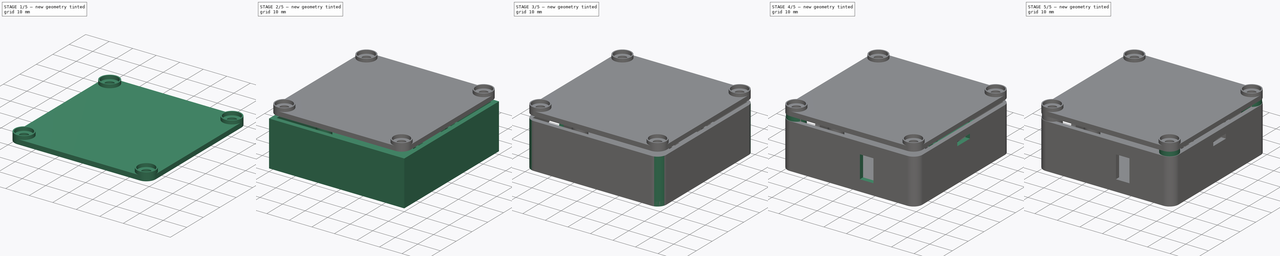
[diagram: build sequence overview — one tinted view per stage of 5, left to right]
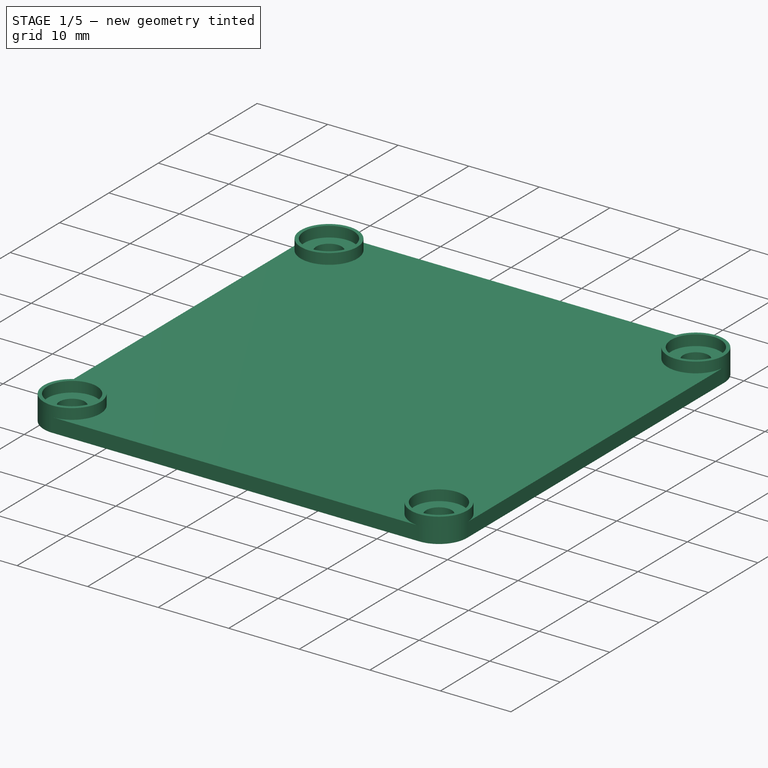
[diagram: stage 1 of 5 — iso view after this stage's code; geometry added in this stage tinted green]
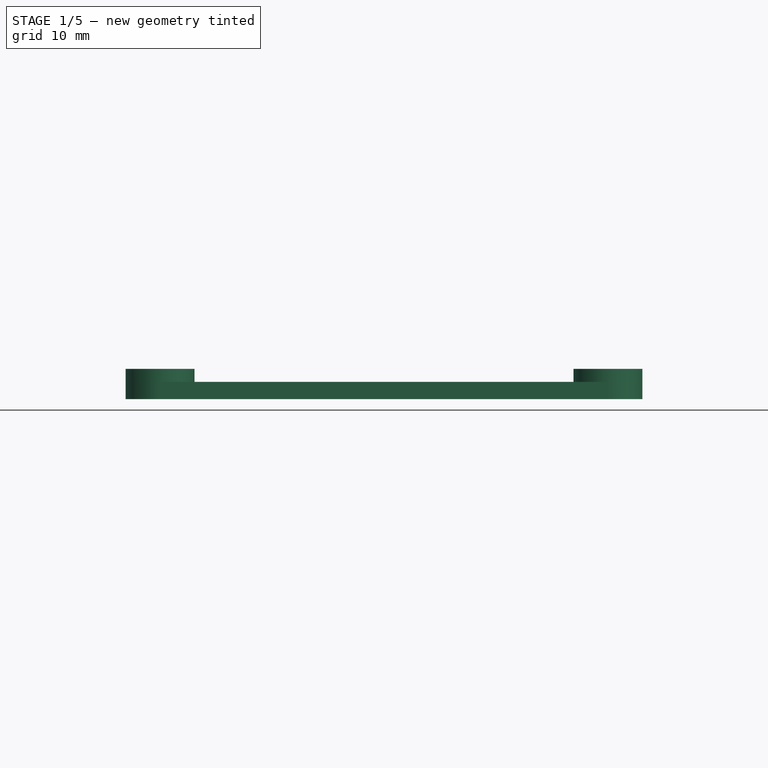
[diagram: stage 1 of 5 — front view after this stage's code; geometry added in this stage tinted green]
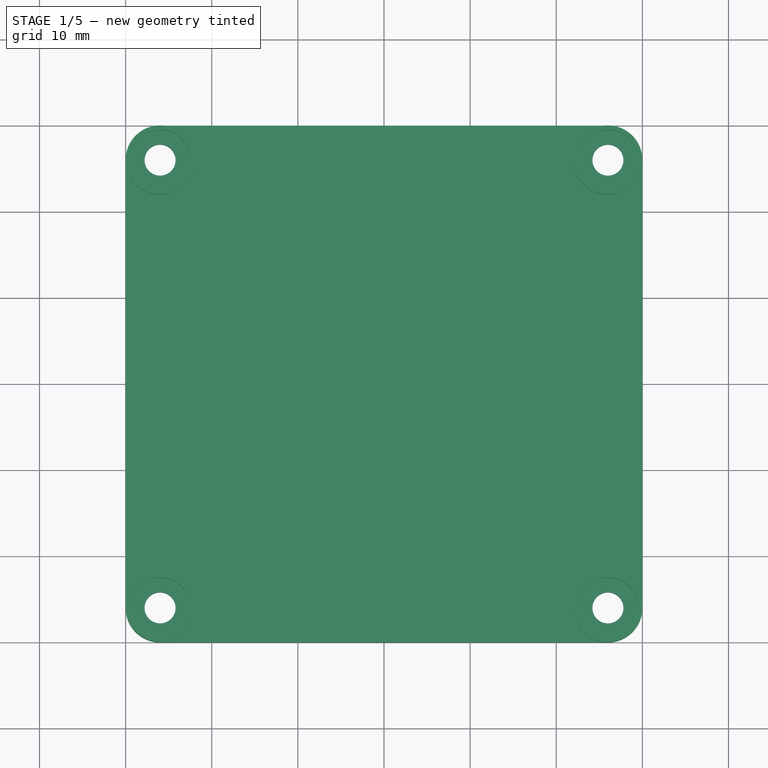
[diagram: stage 1 of 5 — top view after this stage's code; geometry added in this stage tinted green]
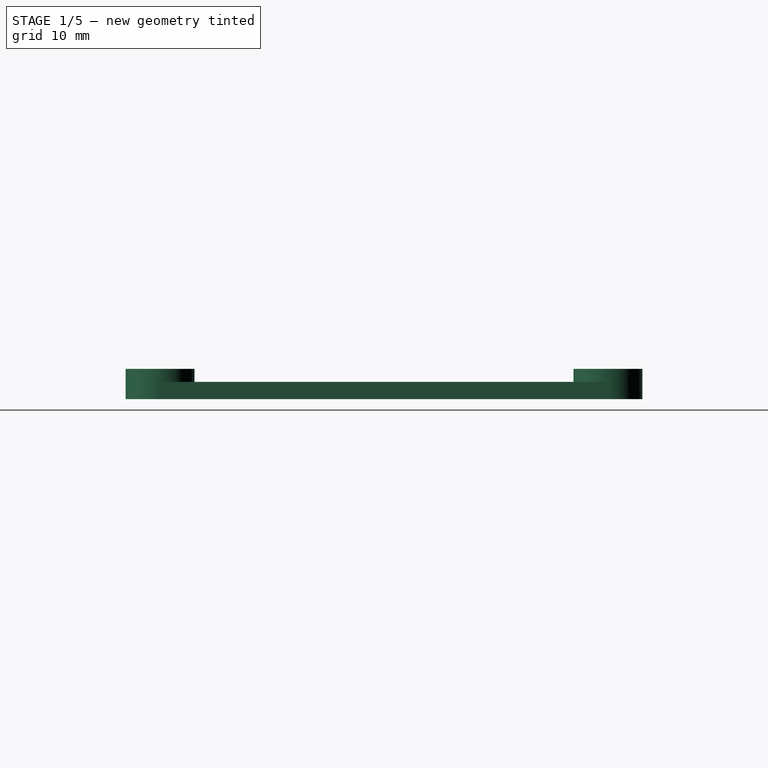
[diagram: stage 1 of 5 — right view after this stage's code; geometry added in this stage tinted green]
FCSTD DOCUMENT  (FreeCAD 0.19R)
Label: box
License: All rights reserved
LicenseURL: http://en.wikipedia.org/wiki/All_rights_reserved
objects: Sketcher::SketchObject×14, PartDesign::Pad×10, PartDesign::Body×8, PartDesign::Pocket×4, PartDesign::Fillet×3
note: 56 computed .brp shape members not serialized (recipe doc carries the construction recipe); baked Part::Feature solids carry a one-line shape summary decoded from their .brp

FEATURE [PartDesign::Body] Body001  label="BottomBox"
  Group = -> [Sketch001,Pad,Fillet002,Sketch008,Pad008]
  Origin = -> Origin001
  Tip = -> Pad008
FEATURE [Sketcher::SketchObject] Sketch012
  AttachmentOffset = pos=(0,0,22) rot=(0,0,1;0rad)
  FullyConstrained = true
  MapMode = 5
  Placement = pos=(0,0,22) rot=(0,0,1;0rad)
  Support = -> [XY_Plane007]
  sketch-geometry (8):
    g0: LineSegment StartX=0 StartY=0 StartZ=0 EndX=60 EndY=0 EndZ=0
    g1: LineSegment StartX=60 StartY=0 StartZ=0 EndX=60 EndY=60 EndZ=0
    g2: LineSegment StartX=60 StartY=60 StartZ=0 EndX=0 EndY=60 EndZ=0
    g3: LineSegment StartX=0 StartY=60 StartZ=0 EndX=0 EndY=0 EndZ=0
    g4: Circle CenterX=4 CenterY=4 CenterZ=0 NormalX=0 NormalY=0 NormalZ=1 AngleXU=0 Radius=1.8
    g5: Circle CenterX=56 CenterY=4 CenterZ=0 NormalX=0 NormalY=0 NormalZ=1 AngleXU=0 Radius=1.8
    g6: Circle CenterX=56 CenterY=56 CenterZ=0 NormalX=0 NormalY=0 NormalZ=1 AngleXU=0 Radius=1.8
    g7: Circle CenterX=4 CenterY=56 CenterZ=0 NormalX=0 NormalY=0 NormalZ=1 AngleXU=0 Radius=1.8
  constraints (23):
    c: Coincident(g0,g1)
    c: Coincident(g1,g2)
    c: Coincident(g2,g3)
    c: Coincident(g3,g0)
    c: Horizontal(g0)
    c: Horizontal(g2)
    c: Vertical(g1)
    c: Vertical(g3)
    c: Coincident(g0,g-1)
    c: Distance(g1) = 60
    c: Distance(g2) = 60
    c: Radius(g4) = 1.8
    c: Distance(g4,g3) = 4
    c: Distance(g4,g0) = 4
    c: Radius(g5) = 1.8
    c: Radius(g6) = 1.8
    c: Radius(g7) = 1.8
    c: Distance(g6,g1) = 4
    c: Distance(g6,g2) = 4
    c: Distance(g7,g2) = 4
    c: Distance(g7,g3) = 4
    c: Distance(g5,g1) = 4
    c: Distance(g5,g0) = 4
FEATURE [PartDesign::Pad] Pad009  label="Выдавливание001"
  Direction = (1,1,1)
  Length = 2
  Length2 = 100
  Profile = -> Sketch012
  Type = 0
FEATURE [PartDesign::Fillet] Fillet003
  Base = -> Pad009 [Edge1,Edge8,Edge5,Edge2]
  BaseFeature = -> Pad009
  Radius = 4
  SupportTransform = false
FEATURE [Sketcher::SketchObject] Sketch013
  AttachmentOffset = pos=(0,0,24) rot=(0,0,1;0rad)
  FullyConstrained = true
  MapMode = 5
  Placement = pos=(0,0,24) rot=(0,0,1;0rad)
  Support = -> [XY_Plane007]
  sketch-geometry (8):
    g0: Circle CenterX=4 CenterY=4 CenterZ=0 NormalX=0 NormalY=0 NormalZ=1 AngleXU=0 Radius=4
    g1: Circle CenterX=4 CenterY=4 CenterZ=0 NormalX=0 NormalY=0 NormalZ=1 AngleXU=0 Radius=3.5
    g2: Circle CenterX=56 CenterY=4 CenterZ=0 NormalX=0 NormalY=0 NormalZ=1 AngleXU=0 Radius=4
    g3: Circle CenterX=4 CenterY=56 CenterZ=0 NormalX=0 NormalY=0 NormalZ=1 AngleXU=0 Radius=4
    g4: Circle CenterX=56 CenterY=56 CenterZ=0 NormalX=0 NormalY=0 NormalZ=1 AngleXU=0 Radius=4
    g5: Circle CenterX=4 CenterY=56 CenterZ=0 NormalX=0 NormalY=0 NormalZ=1 AngleXU=0 Radius=3.5
    g6: Circle CenterX=56 CenterY=56 CenterZ=0 NormalX=0 NormalY=0 NormalZ=1 AngleXU=0 Radius=3.5
    g7: Circle CenterX=56 CenterY=4 CenterZ=0 NormalX=0 NormalY=0 NormalZ=1 AngleXU=0 Radius=3.5
  constraints (20):
    c: Distance(g0,g-1) = 4
    c: Distance(g0,g-2) = 4
    c: Radius(g0) = 4
    c: Coincident(g1,g0)
    c: Radius(g1) = 3.5
    c: Distance(g2,g-1) = 4
    c: Distance(g2,g-2) = 56
    c: Radius(g2) = 4
    c: Distance(g3,g-2) = 4
    c: Distance(g3,g-1) = 56
    c: Radius(g3) = 4
    c: Radius(g4) = 4
    c: Distance(g4,g-2) = 56
    c: Distance(g4,g-1) = 56
    c: Coincident(g5,g3)
    c: Coincident(g6,g4)
    c: Coincident(g7,g2)
    c: Radius(g7) = 3.5
    c: Radius(g6) = 3.5
    c: Radius(g5) = 3.5
FEATURE [PartDesign::Pad] Pad010  label="Ножки"
  BaseFeature = -> Fillet003
  Direction = (1,1,1)
  Length = 1.5
  Length2 = 100
  Profile = -> Sketch013
  Type = 0
FEATURE [PartDesign::Body] Body007  label="Top"
  Group = -> [Sketch012,Pad009,Fillet003,Sketch013,Pad010]
  Origin = -> Origin007
  Tip = -> Pad010
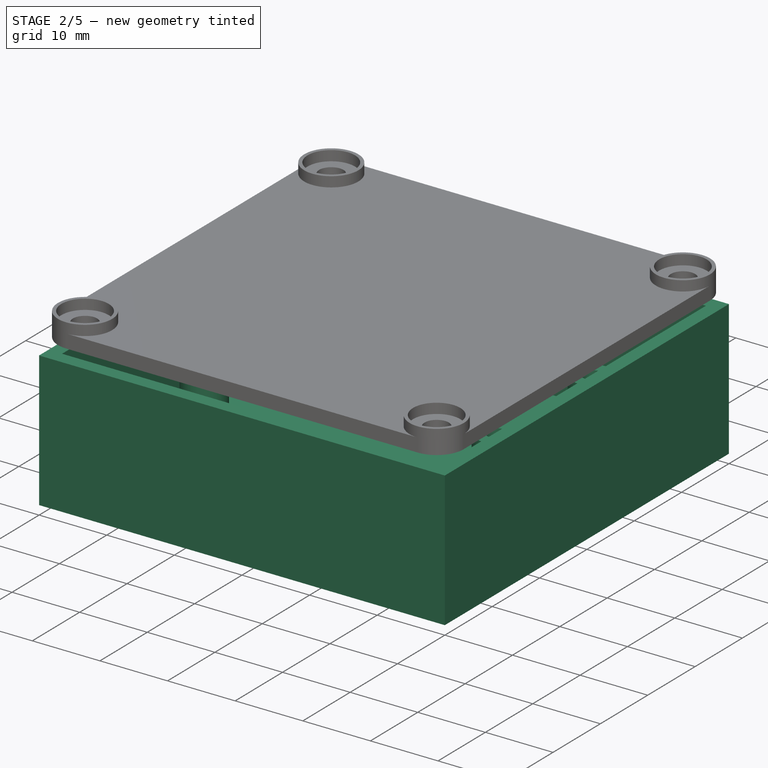
[diagram: stage 2 of 5 — iso view after this stage's code; geometry added in this stage tinted green]
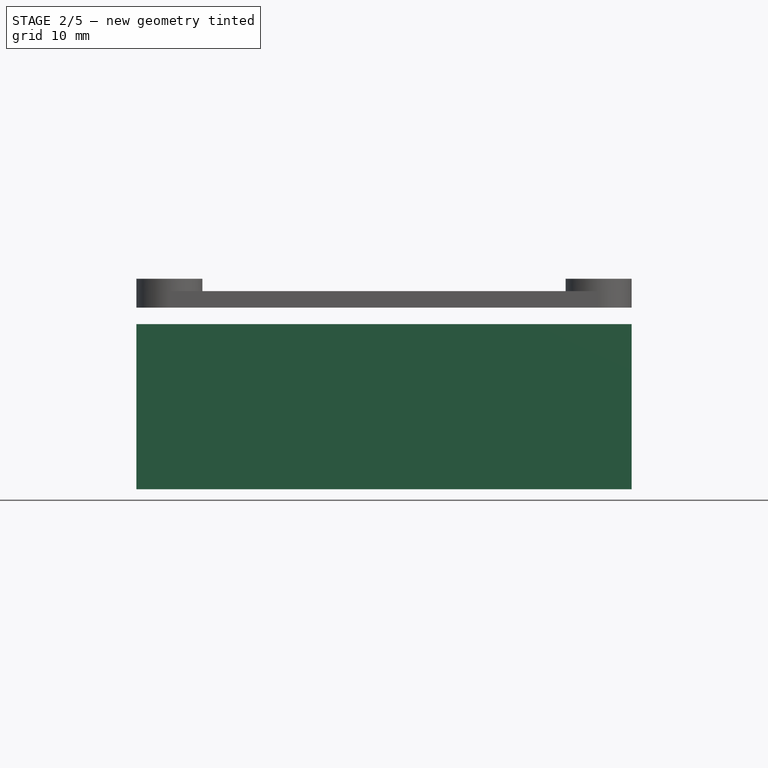
[diagram: stage 2 of 5 — front view after this stage's code; geometry added in this stage tinted green]
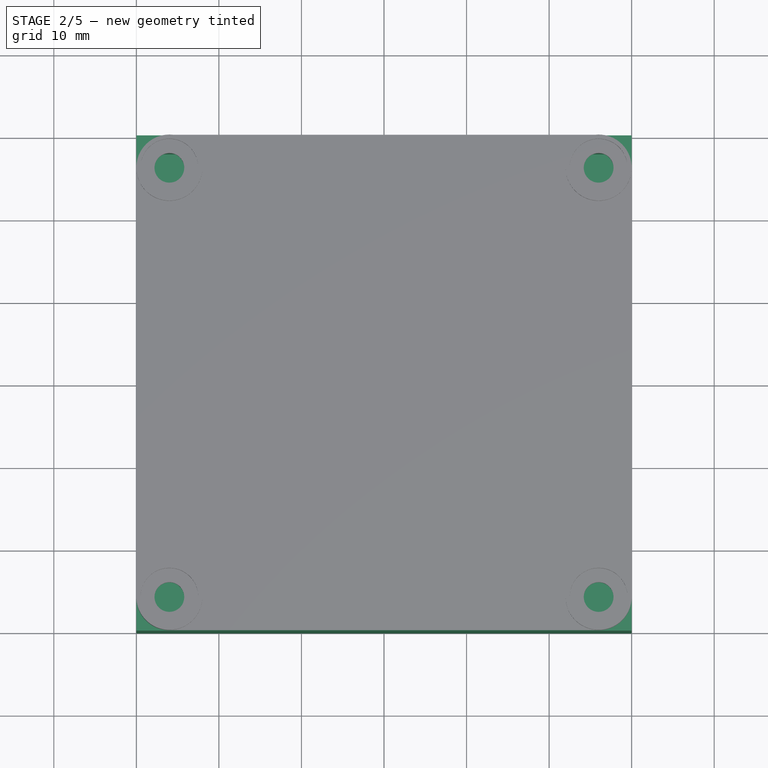
[diagram: stage 2 of 5 — top view after this stage's code; geometry added in this stage tinted green]
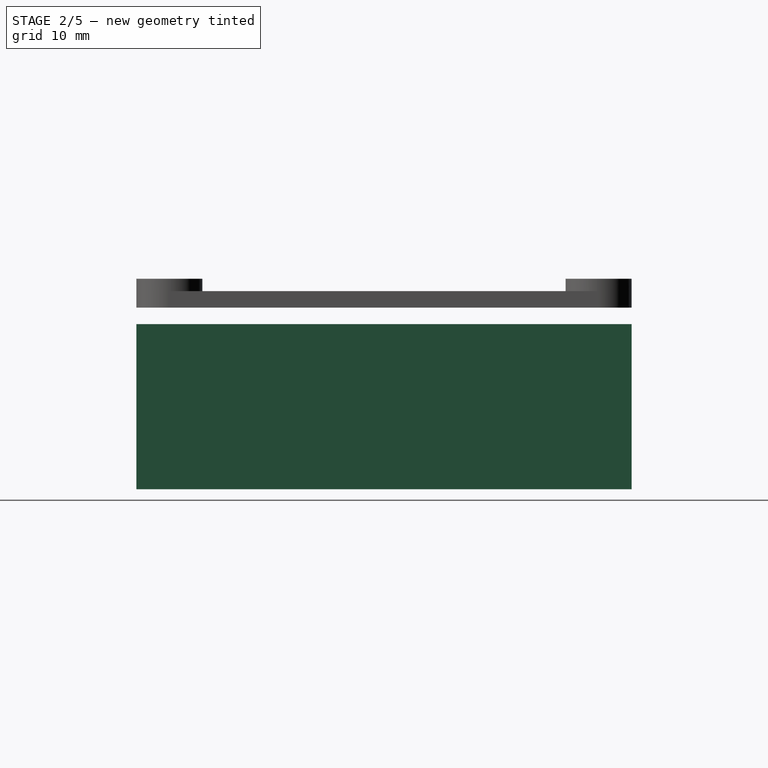
[diagram: stage 2 of 5 — right view after this stage's code; geometry added in this stage tinted green]
FEATURE [Sketcher::SketchObject] Sketch  label="esp_scheme"
  AttachmentOffset = pos=(0,0,12) rot=(0,0,1;0rad)
  FullyConstrained = true
  MapMode = 5
  Placement = pos=(0,0,12) rot=(0,0,1;0rad)
  Support = -> [XY_Plane]
  sketch-geometry (8):
    g0: LineSegment StartX=2.5 StartY=50.5 StartZ=0 EndX=50.9 EndY=50.5 EndZ=0
    g1: LineSegment StartX=50.9 StartY=50.5 StartZ=0 EndX=50.9 EndY=25 EndZ=0
    g2: LineSegment StartX=50.9 StartY=25 StartZ=0 EndX=2.5 EndY=25 EndZ=0
    g3: LineSegment StartX=2.5 StartY=25 StartZ=0 EndX=2.5 EndY=50.5 EndZ=0
    g4: Circle CenterX=5.1 CenterY=47.9 CenterZ=0 NormalX=0 NormalY=0 NormalZ=1 AngleXU=0 Radius=1.6
    g5: Circle CenterX=5.1 CenterY=27.6 CenterZ=0 NormalX=0 NormalY=0 NormalZ=1 AngleXU=0 Radius=1.6
    g6: Circle CenterX=48.3 CenterY=47.9 CenterZ=0 NormalX=0 NormalY=0 NormalZ=1 AngleXU=0 Radius=1.6
    g7: Circle CenterX=48.3 CenterY=27.6 CenterZ=0 NormalX=0 NormalY=0 NormalZ=1 AngleXU=0 Radius=1.6
  constraints (24):
    c: Coincident(g0,g1)
    c: Coincident(g1,g2)
    c: Coincident(g2,g3)
    c: Coincident(g3,g0)
    c: Horizontal(g0)
    c: Horizontal(g2)
    c: Vertical(g1)
    c: Vertical(g3)
    c: DistanceX(g0,g0) = 48.4
    c: DistanceY(g1,g1) = 25.5
    c: Radius(g4) = 1.6
    c: Distance(g4,g3) = 2.6
    c: Distance(g4,g0) = 2.6
    c: Equal(g4,g5) = 1.6
    c: Distance(g5,g3) = 2.6
    c: Distance(g5,g2) = 2.6
    c: Equal(g4,g6) = 1.6
    c: Distance(g6,g0) = 2.6
    c: Distance(g6,g1) = 2.6
    c: Equal(g4,g7) = 1.6
    c: Distance(g7,g1) = 2.6
    c: Distance(g7,g2) = 2.6
    c: Distance(g-1,g2) = 25
    c: Distance(g-1,g3) = 2.5
FEATURE [Sketcher::SketchObject] Sketch001
  FullyConstrained = true
  MapMode = 5
  Support = -> [XY_Plane001]
  sketch-geometry (4):
    g0: LineSegment StartX=0 StartY=0 StartZ=0 EndX=60 EndY=0 EndZ=0
    g1: LineSegment StartX=60 StartY=0 StartZ=0 EndX=60 EndY=60 EndZ=0
    g2: LineSegment StartX=60 StartY=60 StartZ=0 EndX=0 EndY=60 EndZ=0
    g3: LineSegment StartX=0 StartY=60 StartZ=0 EndX=0 EndY=0 EndZ=0
  constraints (11):
    c: Coincident(g0,g1)
    c: Coincident(g1,g2)
    c: Coincident(g2,g3)
    c: Coincident(g3,g0)
    c: Horizontal(g0)
    c: Horizontal(g2)
    c: Vertical(g1)
    c: Vertical(g3)
    c: Distance(g3) = 60
    c: Distance(g2) = 60
    c: Coincident(g-1,g0)
FEATURE [PartDesign::Pad] Pad  label="Выдавливание"
  Direction = (1,1,1)
  Length = 2
  Length2 = 100
  Profile = -> Sketch001
  Type = 0
FEATURE [Sketcher::SketchObject] Sketch002  label="Стенки"
  FullyConstrained = true
  MapMode = 5
  Support = -> [XY_Plane002]
  sketch-geometry (8):
    g0: LineSegment StartX=0 StartY=0 StartZ=0 EndX=60 EndY=0 EndZ=0
    g1: LineSegment StartX=60 StartY=0 StartZ=0 EndX=60 EndY=60 EndZ=0
    g2: LineSegment StartX=60 StartY=60 StartZ=0 EndX=0 EndY=60 EndZ=0
    g3: LineSegment StartX=0 StartY=60 StartZ=0 EndX=0 EndY=0 EndZ=0
    g4: LineSegment StartX=2 StartY=2 StartZ=0 EndX=58 EndY=2 EndZ=0
    g5: LineSegment StartX=58 StartY=2 StartZ=0 EndX=58 EndY=58 EndZ=0
    g6: LineSegment StartX=58 StartY=58 StartZ=0 EndX=2 EndY=58 EndZ=0
    g7: LineSegment StartX=2 StartY=58 StartZ=0 EndX=2 EndY=2 EndZ=0
  constraints (23):
    c: Coincident(g0,g1)
    c: Coincident(g1,g2)
    c: Coincident(g2,g3)
    c: Coincident(g3,g0)
    c: Horizontal(g0)
    c: Horizontal(g2)
    c: Vertical(g1)
    c: Vertical(g3)
    c: Coincident(g0,g-1)
    c: Distance(g2) = 60
    c: Distance(g3) = 60
    c: Coincident(g4,g5)
    c: Coincident(g5,g6)
    c: Coincident(g6,g7)
    c: Coincident(g7,g4)
    c: Horizontal(g4)
    c: Horizontal(g6)
    c: Vertical(g5)
    c: Vertical(g7)
    c: Distance(g6,g3) = 2
    c: Distance(g6,g2) = 2
    c: Distance(g5,g1) = 2
    c: Distance(g4,g0) = 2
FEATURE [PartDesign::Fillet] Fillet002  label="Закругление"
  Base = -> Pad [Edge1,Edge8,Edge5,Edge2]
  BaseFeature = -> Pad
  Radius = 4
  SupportTransform = false
FEATURE [PartDesign::Body] Body003  label="Стойка ЛН001"
  Group = -> [Sketch004,Pad002]
  Origin = -> Origin003
  Tip = -> Pad002
FEATURE [PartDesign::Pad] Pad006  label="Стенки_выдавливание"
  Direction = (1,1,1)
  Length = 20
  Length2 = 100
  Profile = -> Sketch002
  Type = 0
FEATURE [PartDesign::Body] Body002  label="BoxSides"
  Group = -> [Sketch002,Sketch003,Pad006,Fillet,Pocket,Sketch009,Pocket001,Sketch010,Pocket002,Sketch011,Pocket003]
  Origin = -> Origin002
  Placement = pos=(0,0,2) rot=(0,0,1;0rad)
  Tip = -> Pocket003
FEATURE [PartDesign::Pad] Pad008  label="Стойки_esp"
  BaseFeature = -> Fillet002
  Direction = (1,1,1)
  Length = 10
  Length2 = 100
  Profile = -> Sketch008
  Type = 0
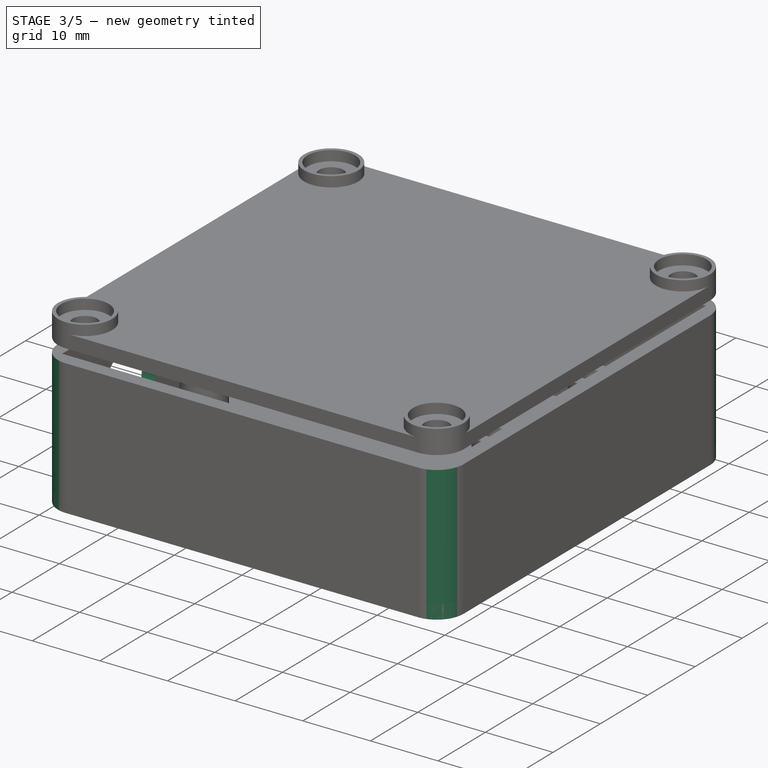
[diagram: stage 3 of 5 — iso view after this stage's code; geometry added in this stage tinted green]
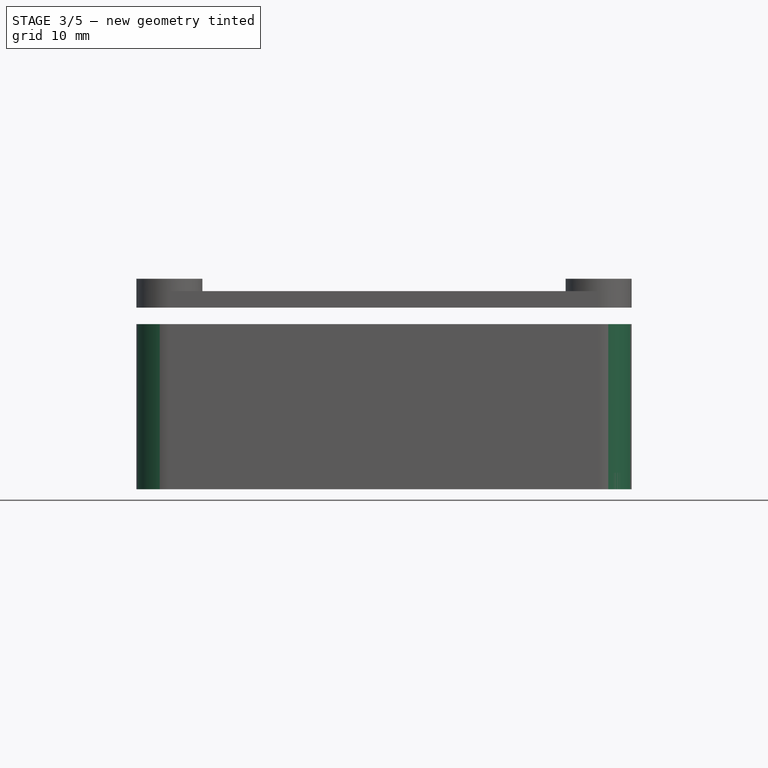
[diagram: stage 3 of 5 — front view after this stage's code; geometry added in this stage tinted green]
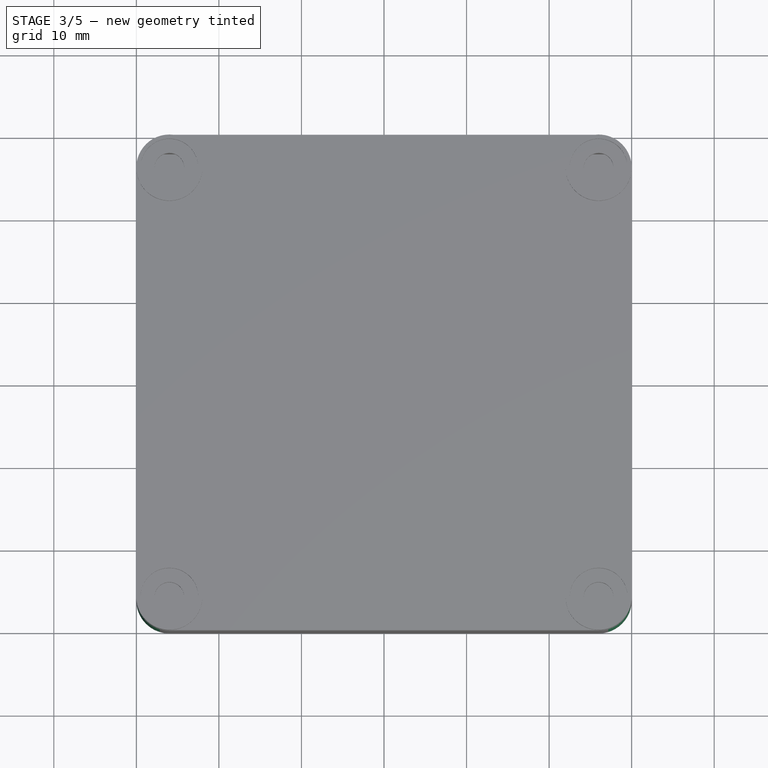
[diagram: stage 3 of 5 — top view after this stage's code; geometry added in this stage tinted green]
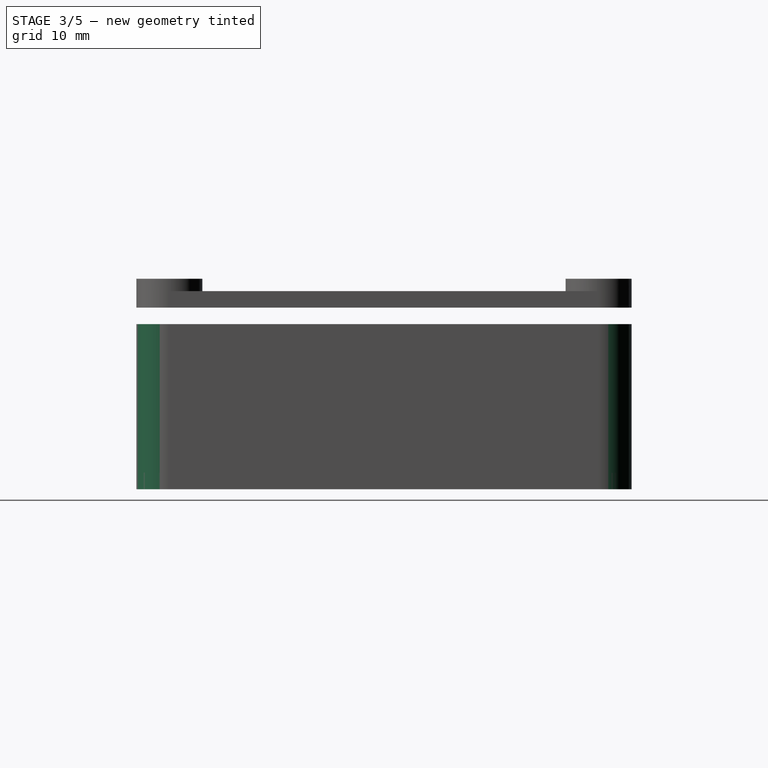
[diagram: stage 3 of 5 — right view after this stage's code; geometry added in this stage tinted green]
FEATURE [PartDesign::Fillet] Fillet  label="Стенки_закругление"
  Base = -> Pad006 [Edge1,Edge2,Edge8,Edge5]
  BaseFeature = -> Pad006
  Radius = 4
  SupportTransform = false
FEATURE [PartDesign::Body] Body  label="ESP"
  Group = -> [Sketch,Pad007]
  Origin = -> Origin
  Tip = -> Pad007
FEATURE [Sketcher::SketchObject] Sketch008  label="esp_стойки"
  AttachmentOffset = pos=(0,0,2) rot=(0,0,1;0rad)
  FullyConstrained = true
  MapMode = 5
  Placement = pos=(0,0,2) rot=(0,0,1;0rad)
  Support = -> [XY_Plane001]
  sketch-geometry (8):
    g0: Circle CenterX=5.1 CenterY=47.9 CenterZ=0 NormalX=0 NormalY=0 NormalZ=1 AngleXU=0 Radius=1.4
    g1: Circle CenterX=5.1 CenterY=27.6 CenterZ=0 NormalX=0 NormalY=0 NormalZ=1 AngleXU=0 Radius=1.4
    g2: Circle CenterX=48.3 CenterY=47.9 CenterZ=0 NormalX=0 NormalY=0 NormalZ=1 AngleXU=0 Radius=1.4
    g3: Circle CenterX=48.3 CenterY=27.6 CenterZ=0 NormalX=0 NormalY=0 NormalZ=1 AngleXU=0 Radius=1.4
    g4: Circle CenterX=5.1 CenterY=47.9 CenterZ=0 NormalX=0 NormalY=0 NormalZ=1 AngleXU=0 Radius=3
    g5: Circle CenterX=48.3 CenterY=47.9 CenterZ=0 NormalX=0 NormalY=0 NormalZ=1 AngleXU=0 Radius=3
    g6: Circle CenterX=48.3 CenterY=27.6 CenterZ=0 NormalX=0 NormalY=0 NormalZ=1 AngleXU=0 Radius=3
    g7: Circle CenterX=5.1 CenterY=27.6 CenterZ=0 NormalX=0 NormalY=0 NormalZ=1 AngleXU=0 Radius=3
  constraints (20):
    c: Distance(g0,g-2) = 5.1
    c: Radius(g0) = 1.4
    c: Distance(g0,g-1) = 47.9
    c: Distance(g1,g-2) = 5.1
    c: Radius(g1) = 1.4
    c: Distance(g1,g-1) = 27.6
    c: Radius(g2) = 1.4
    c: Distance(g2,g-2) = 48.3
    c: Distance(g2,g-1) = 47.9
    c: Radius(g3) = 1.4
    c: Distance(g3,g-1) = 27.6
    c: Distance(g3,g-2) = 48.3
    c: Coincident(g4,g0)
    c: Radius(g4) = 3
    c: Coincident(g5,g2)
    c: Coincident(g6,g3)
    c: Coincident(g7,g1)
    c: Radius(g5) = 3
    c: Radius(g6) = 3
    c: Radius(g7) = 3
FEATURE [PartDesign::Pocket] Pocket  label="Power_con_"
  BaseFeature = -> Fillet
  Length = 2
  Length2 = 100
  Profile = -> Sketch003
  Reversed = true
  Type = 0
FEATURE [Sketcher::SketchObject] Sketch009  label="usb_scheme"
  FullyConstrained = true
  MapMode = 5
  Placement = pos=(0,0,0) rot=(0.57735,0.57735,0.57735;2.0944rad)
  Support = -> [YZ_Plane002]
  sketch-geometry (4):
    g0: LineSegment StartX=42.75 StartY=14.6 StartZ=0 EndX=32.75 EndY=14.6 EndZ=0
    g1: LineSegment StartX=32.75 StartY=14.6 StartZ=0 EndX=32.75 EndY=11.6 EndZ=0
    g2: LineSegment StartX=32.75 StartY=11.6 StartZ=0 EndX=42.75 EndY=11.6 EndZ=0
    g3: LineSegment StartX=42.75 StartY=11.6 StartZ=0 EndX=42.75 EndY=14.6 EndZ=0
  constraints (12):
    c: Coincident(g0,g1)
    c: Coincident(g1,g2)
    c: Coincident(g2,g3)
    c: Coincident(g3,g0)
    c: Horizontal(g0)
    c: Horizontal(g2)
    c: Vertical(g1)
    c: Vertical(g3)
    c: Distance(g1) = 3
    c: Distance(g2) = 10
    c: Distance(g1,g-2) = 32.75
    c: Distance(g2,g-1) = 11.6
FEATURE [PartDesign::Pocket] Pocket001  label="usb"
  BaseFeature = -> Pocket
  Length = 2
  Length2 = 100
  Profile = -> Sketch009
  Reversed = true
  Type = 0
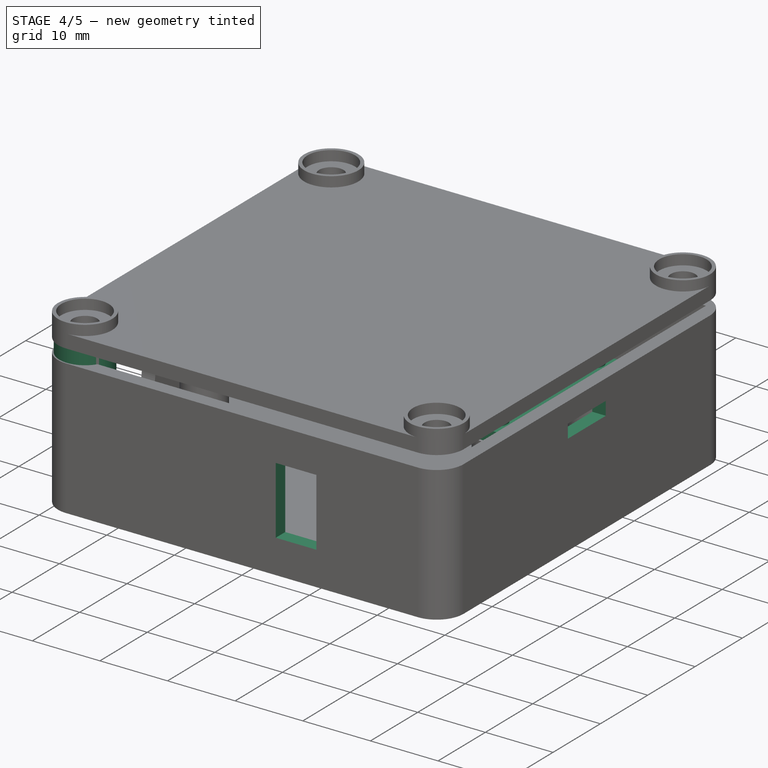
[diagram: stage 4 of 5 — iso view after this stage's code; geometry added in this stage tinted green]
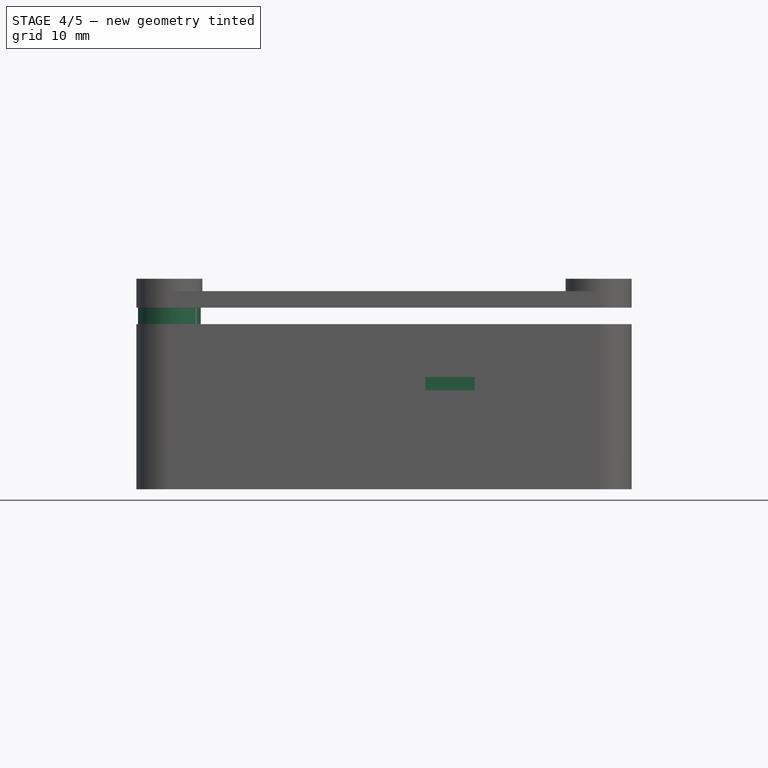
[diagram: stage 4 of 5 — front view after this stage's code; geometry added in this stage tinted green]
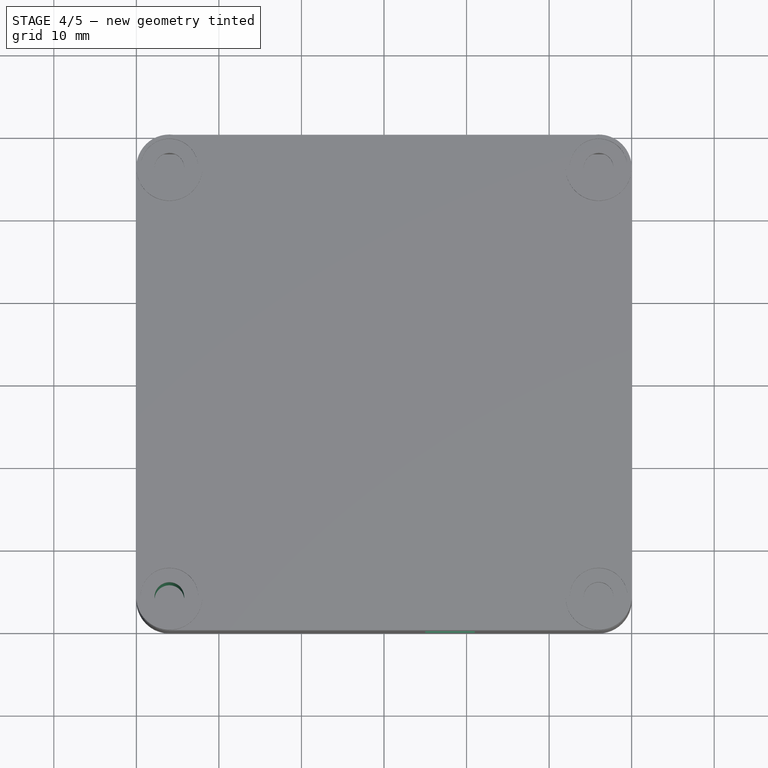
[diagram: stage 4 of 5 — top view after this stage's code; geometry added in this stage tinted green]
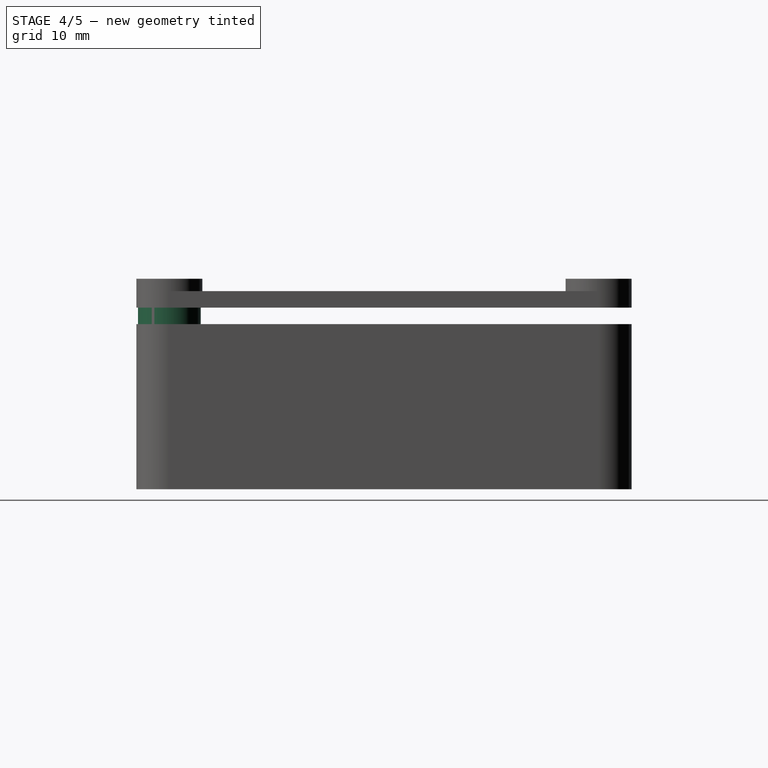
[diagram: stage 4 of 5 — right view after this stage's code; geometry added in this stage tinted green]
FEATURE [PartDesign::Body] Body006  label="Стойка ПВ001"
  Group = -> [Sketch007,Pad005]
  Origin = -> Origin006
  Tip = -> Pad005
FEATURE [Sketcher::SketchObject] Sketch004
  AttachmentOffset = pos=(0,0,2) rot=(0,0,1;0rad)
  FullyConstrained = true
  MapMode = 5
  Placement = pos=(0,0,2) rot=(0,0,1;0rad)
  Support = -> [XY_Plane003]
  sketch-geometry (2):
    g0: Circle CenterX=4 CenterY=4 CenterZ=0 NormalX=0 NormalY=0 NormalZ=1 AngleXU=0 Radius=1.8
    g1: Circle CenterX=4 CenterY=4 CenterZ=0 NormalX=0 NormalY=0 NormalZ=1 AngleXU=0 Radius=3.8
  constraints (5):
    c: Radius(g0) = 1.8
    c: Distance(g0,g-2) = 4
    c: Distance(g0,g-1) = 4
    c: Coincident(g1,g0)
    c: Radius(g1) = 3.8
FEATURE [PartDesign::Pad] Pad002  label="Стойка ЛН"
  Direction = (1,1,1)
  Length = 20
  Length2 = 100
  Profile = -> Sketch004
  Type = 0
FEATURE [PartDesign::Pad] Pad007  label="esp_"
  Direction = (1,1,1)
  Length = 1.6
  Length2 = 100
  Profile = -> Sketch
  Type = 0
FEATURE [Sketcher::SketchObject] Sketch010  label="Strip_outout_scheme"
  AttachmentOffset = pos=(0,0,60) rot=(0,0,1;0rad)
  FullyConstrained = true
  MapMode = 5
  Placement = pos=(60,-1.33e-14,1.33e-14) rot=(0.57735,0.57735,0.57735;2.0944rad)
  Support = -> [YZ_Plane002]
  sketch-geometry (4):
    g0: LineSegment StartX=26 StartY=17 StartZ=0 EndX=34 EndY=17 EndZ=0
    g1: LineSegment StartX=34 StartY=17 StartZ=0 EndX=34 EndY=15 EndZ=0
    g2: LineSegment StartX=34 StartY=15 StartZ=0 EndX=26 EndY=15 EndZ=0
    g3: LineSegment StartX=26 StartY=15 StartZ=0 EndX=26 EndY=17 EndZ=0
  constraints (12):
    c: Coincident(g0,g1)
    c: Coincident(g1,g2)
    c: Coincident(g2,g3)
    c: Coincident(g3,g0)
    c: Horizontal(g0)
    c: Horizontal(g2)
    c: Vertical(g1)
    c: Vertical(g3)
    c: Distance(g0) = 8
    c: Distance(g3) = 2
    c: Distance(g2,g-2) = 26
    c: Distance(g1,g-1) = 15
FEATURE [PartDesign::Pocket] Pocket002  label="Strip_output"
  BaseFeature = -> Pocket001
  Length = 2
  Length2 = 100
  Profile = -> Sketch010
  Type = 0
FEATURE [Sketcher::SketchObject] Sketch011  label="ir_scheme"
  FullyConstrained = true
  MapMode = 5
  Placement = pos=(0,0,0) rot=(1,0,0;1.5708rad)
  Support = -> [XZ_Plane002]
  sketch-geometry (4):
    g0: LineSegment StartX=35 StartY=15 StartZ=0 EndX=41 EndY=15 EndZ=0
    g1: LineSegment StartX=41 StartY=15 StartZ=0 EndX=41 EndY=5 EndZ=0
    g2: LineSegment StartX=41 StartY=5 StartZ=0 EndX=35 EndY=5 EndZ=0
    g3: LineSegment StartX=35 StartY=5 StartZ=0 EndX=35 EndY=15 EndZ=0
  constraints (12):
    c: Coincident(g0,g1)
    c: Coincident(g1,g2)
    c: Coincident(g2,g3)
    c: Coincident(g3,g0)
    c: Horizontal(g0)
    c: Horizontal(g2)
    c: Vertical(g1)
    c: Vertical(g3)
    c: Distance(g0) = 6
    c: Distance(g3) = 10
    c: Distance(g1,g-1) = 5
    c: Distance(g0,g-2) = 35
FEATURE [PartDesign::Pocket] Pocket003  label="ir_"
  BaseFeature = -> Pocket002
  Length = 2
  Length2 = 100
  Profile = -> Sketch011
  Type = 0
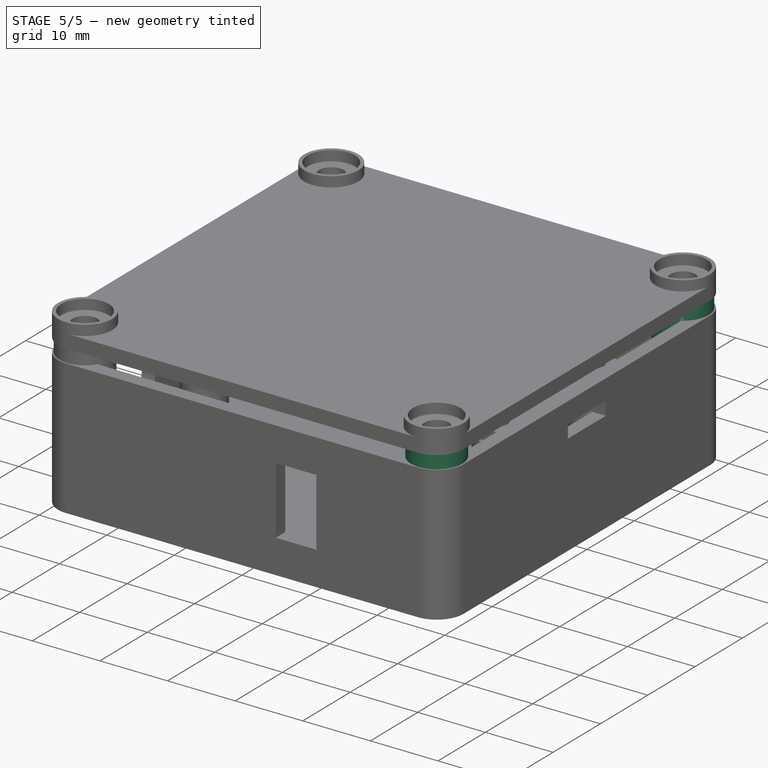
[diagram: stage 5 of 5 — iso view after this stage's code; geometry added in this stage tinted green]
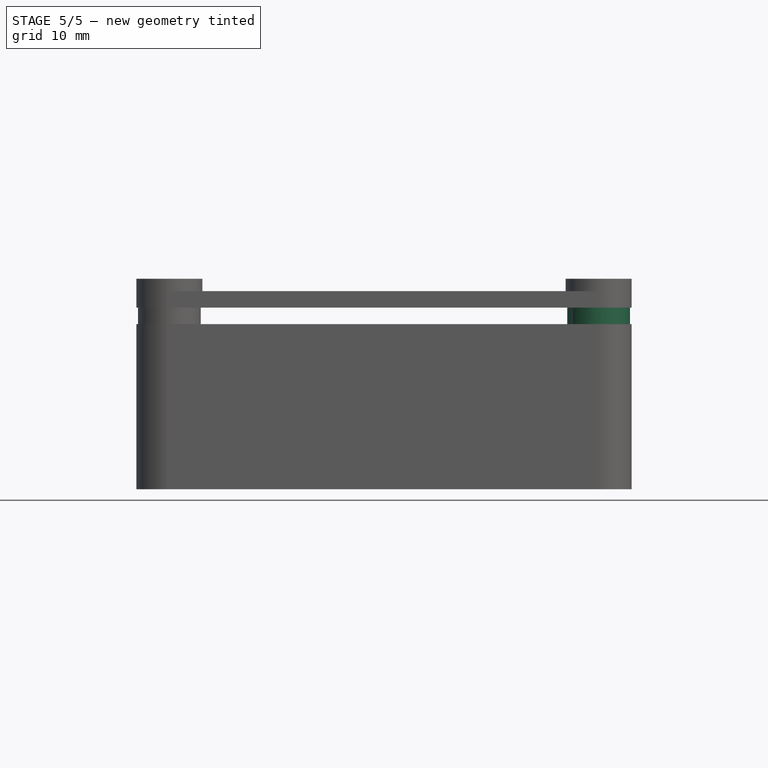
[diagram: stage 5 of 5 — front view after this stage's code; geometry added in this stage tinted green]
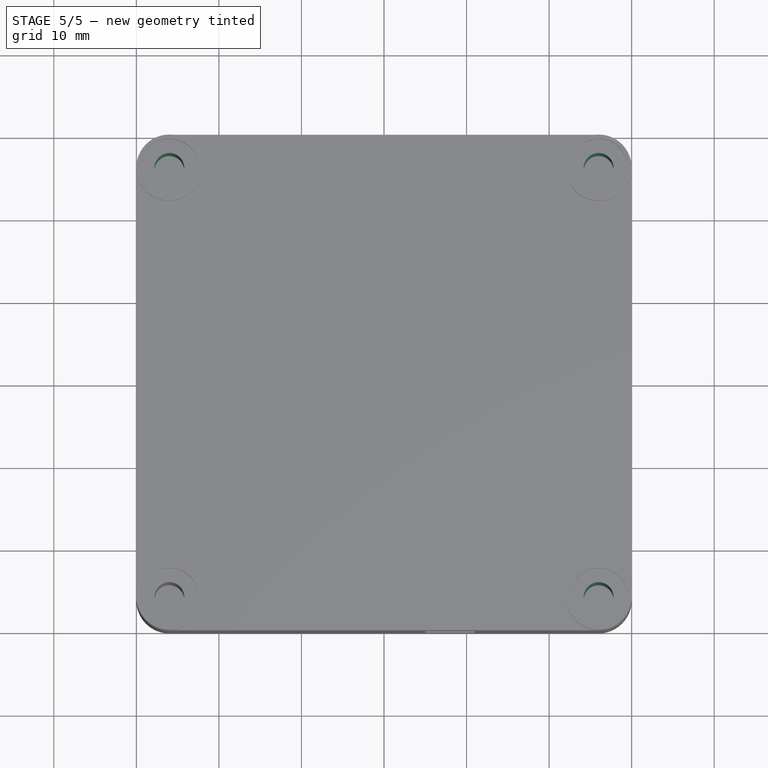
[diagram: stage 5 of 5 — top view after this stage's code; geometry added in this stage tinted green]
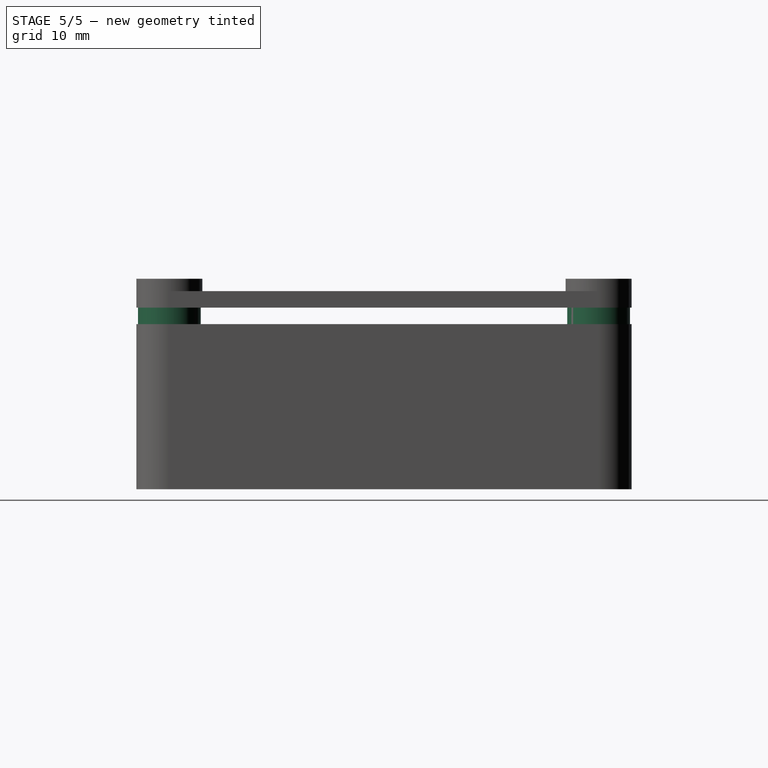
[diagram: stage 5 of 5 — right view after this stage's code; geometry added in this stage tinted green]
FEATURE [Sketcher::SketchObject] Sketch003  label="PowerCon"
  FullyConstrained = true
  MapMode = 5
  Placement = pos=(0,0,0) rot=(0.57735,0.57735,0.57735;2.0944rad)
  Support = -> [YZ_Plane002]
  sketch-geometry (1):
    g0: Circle CenterX=16 CenterY=10 CenterZ=0 NormalX=0 NormalY=0 NormalZ=1 AngleXU=0 Radius=5.7
  constraints (3):
    c: Radius(g0) = 5.7
    c: Distance(g0,g-2) = 16
    c: Distance(g0,g-1) = 10
FEATURE [Sketcher::SketchObject] Sketch005
  AttachmentOffset = pos=(0,0,2) rot=(0,0,1;0rad)
  FullyConstrained = true
  MapMode = 5
  Placement = pos=(0,0,2) rot=(0,0,1;0rad)
  Support = -> [XY_Plane004]
  sketch-geometry (2):
    g0: Circle CenterX=56 CenterY=4 CenterZ=0 NormalX=0 NormalY=0 NormalZ=1 AngleXU=0 Radius=1.8
    g1: Circle CenterX=56 CenterY=4 CenterZ=0 NormalX=0 NormalY=0 NormalZ=1 AngleXU=0 Radius=3.8
  constraints (5):
    c: Radius(g0) = 1.8
    c: Distance(g0,g-1) = 4
    c: Distance(g0,g-2) = 56
    c: Coincident(g1,g0)
    c: Radius(g1) = 3.8
FEATURE [PartDesign::Pad] Pad003
  Direction = (1,1,1)
  Length = 20
  Length2 = 100
  Profile = -> Sketch005
  Type = 0
FEATURE [PartDesign::Body] Body004  label="Стойка ПН001"
  Group = -> [Sketch005,Pad003]
  Origin = -> Origin004
  Tip = -> Pad003
FEATURE [Sketcher::SketchObject] Sketch006
  AttachmentOffset = pos=(0,0,2) rot=(0,0,1;0rad)
  FullyConstrained = true
  MapMode = 5
  Placement = pos=(0,0,2) rot=(0,0,1;0rad)
  Support = -> [XY_Plane005]
  sketch-geometry (2):
    g0: Circle CenterX=4 CenterY=56 CenterZ=0 NormalX=0 NormalY=0 NormalZ=1 AngleXU=0 Radius=1.8
    g1: Circle CenterX=4 CenterY=56 CenterZ=0 NormalX=0 NormalY=0 NormalZ=1 AngleXU=0 Radius=3.8
  constraints (5):
    c: Radius(g0) = 1.8
    c: Distance(g0,g-2) = 4
    c: Distance(g0,g-1) = 56
    c: Coincident(g1,g0)
    c: Radius(g1) = 3.8
FEATURE [PartDesign::Pad] Pad004
  Direction = (1,1,1)
  Length = 20
  Length2 = 100
  Profile = -> Sketch006
  Type = 0
FEATURE [PartDesign::Body] Body005  label="Стойка ЛВ001"
  Group = -> [Sketch006,Pad004]
  Origin = -> Origin005
  Tip = -> Pad004
FEATURE [Sketcher::SketchObject] Sketch007
  AttachmentOffset = pos=(0,0,2) rot=(0,0,1;0rad)
  FullyConstrained = true
  MapMode = 5
  Placement = pos=(0,0,2) rot=(0,0,1;0rad)
  Support = -> [XY_Plane006]
  sketch-geometry (2):
    g0: Circle CenterX=56 CenterY=56 CenterZ=0 NormalX=0 NormalY=0 NormalZ=1 AngleXU=0 Radius=1.8
    g1: Circle CenterX=56 CenterY=56 CenterZ=0 NormalX=0 NormalY=0 NormalZ=1 AngleXU=0 Radius=3.8
  constraints (5):
    c: Radius(g0) = 1.8
    c: Distance(g0,g-2) = 56
    c: Distance(g0,g-1) = 56
    c: Coincident(g1,g0)
    c: Radius(g1) = 3.8
FEATURE [PartDesign::Pad] Pad005
  Direction = (1,1,1)
  Length = 20
  Length2 = 100
  Profile = -> Sketch007
  Type = 0
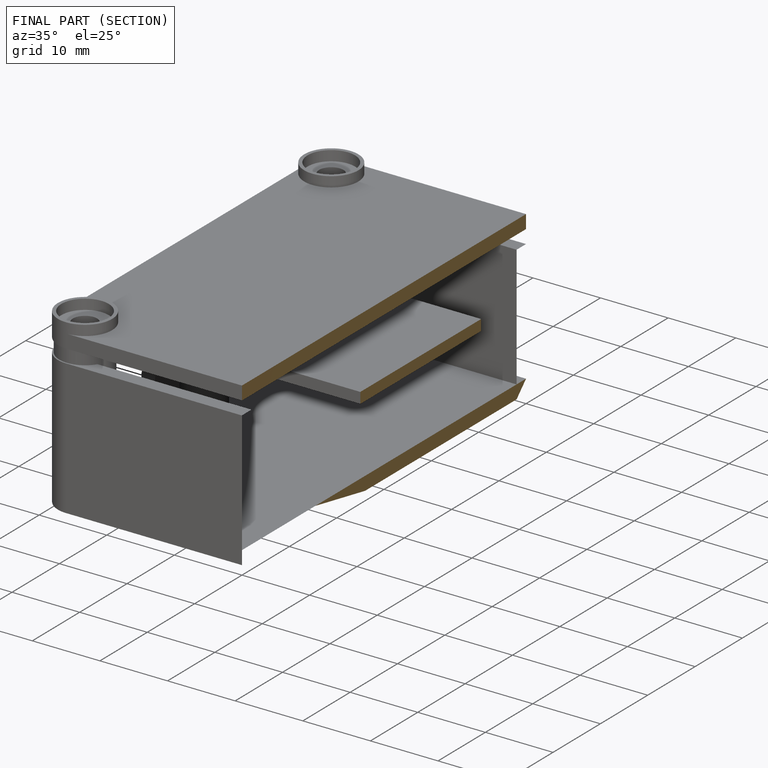
[diagram: finished part — half-section view (interior)]
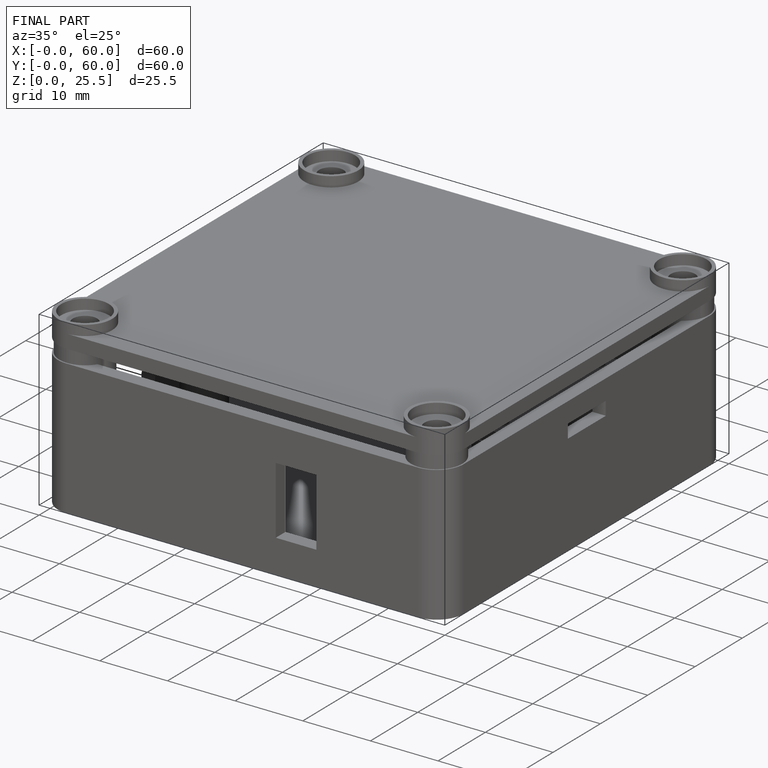
[diagram: finished part — iso view with bounding-box wireframe]
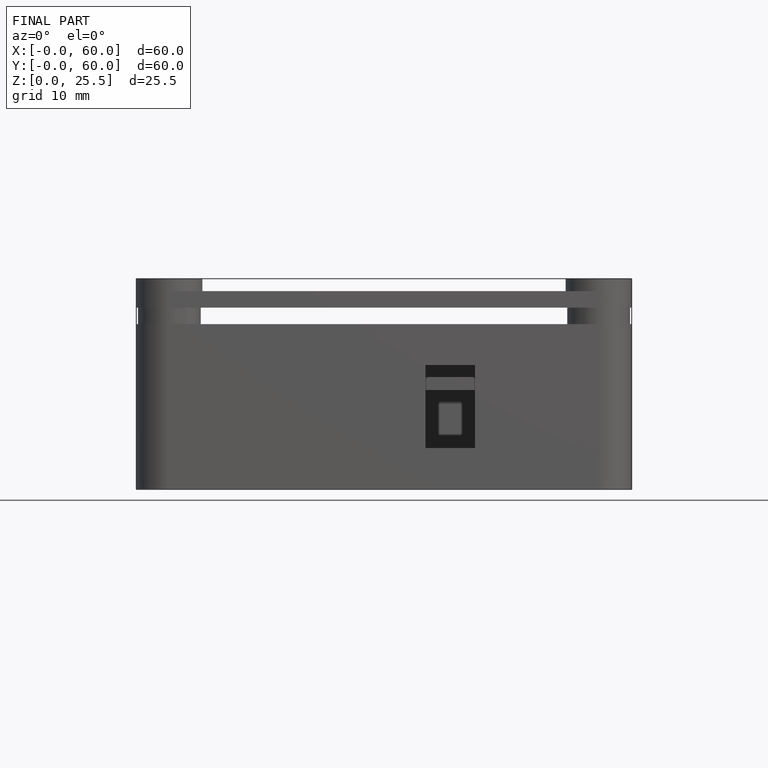
[diagram: finished part — front view with bounding-box wireframe]
